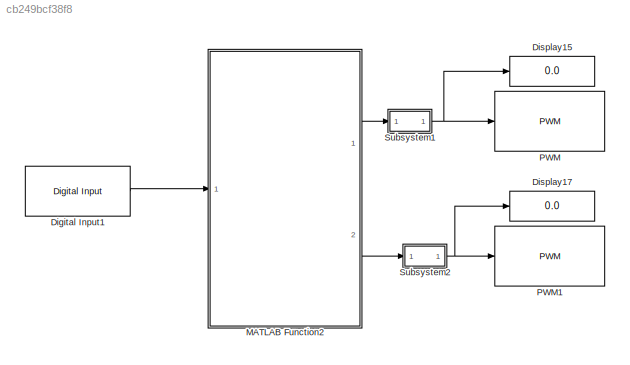
MODEL slx_cb249bcf38f8
KIND model
CONFIG AbsTol = auto
CONFIG EnableMultiTasking = on
CONFIG FixedStep = auto
CONFIG MaxStep = auto
CONFIG MinStep = auto
CONFIG RelTol = 1e-3
CONFIG SampleTimeConstraint = Unconstrained
CONFIG Solver = FixedStepAuto
CONFIG SolverName = FixedStepAuto
CONFIG StartTime = 0.0
CONFIG StopTime = inf
BLOCK [Reference] Digital Input1  REF=arduinolib/Digital Input
  Ports = [0, 1]
  SourceBlock = arduinolib/Digital Input
  SourceProductBaseCode = ARDUINO
  SourceProductName = Simulink Support Package for Arduino Hardware
  SourceType = Arduino Digital Input
BLOCK [Display] Display15
  Decimation = 1
  Ports = [1]
BLOCK [Display] Display17
  Decimation = 1
  Ports = [1]
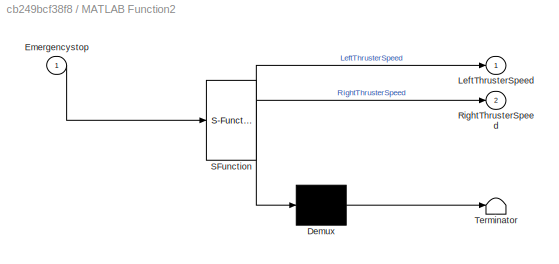
BLOCK [SubSystem] MATLAB Function2
  ErrorFcn = Stateflow.Translate.translate
  PermitHierarchicalResolution = ExplicitOnly
  Ports = [1, 2]
  RequestExecContextInheritance = off
  SFBlockType = MATLAB Function
  TreatAsAtomicUnit = on
BLOCK [Demux] MATLAB Function2/ Demux 
  Outputs = 1
  Ports = [1, 1]
BLOCK [S-Function] MATLAB Function2/ SFunction 
  EnableBusSupport = on
  FunctionName = sf_sfun
  PortCounts = [1 3]
  Ports = [1, 3]
  SFcnIsStateOwnerBlock = off
  SFunctionDeploymentMode = off
  Tag = Stateflow S-Function Test_av_hastighet_og_manovrerbarhet 2
BLOCK [Terminator] MATLAB Function2/ Terminator 
BLOCK [Inport] MATLAB Function2/Emergencystop
  IconDisplay = Port number
BLOCK [Outport] MATLAB Function2/LeftThrusterSpeed
  IconDisplay = Port number
BLOCK [Outport] MATLAB Function2/RightThrusterSpeed
  IconDisplay = Port number
  Port = 2
BLOCK [Reference] PWM  REF=arduinolib/PWM
  Ports = [1]
  SourceBlock = arduinolib/PWM
  SourceProductBaseCode = ARDUINO
  SourceProductName = Simulink Support Package for Arduino Hardware
  SourceType = Arduino PWM
BLOCK [Reference] PWM1  REF=arduinolib/PWM
  Ports = [1]
  SourceBlock = arduinolib/PWM
  SourceProductBaseCode = ARDUINO
  SourceProductName = Simulink Support Package for Arduino Hardware
  SourceType = Arduino PWM
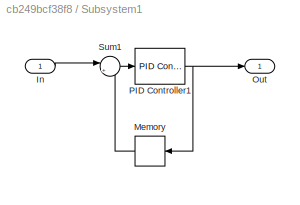
BLOCK [SubSystem] Subsystem1
  Ports = [1, 1]
  RequestExecContextInheritance = off
BLOCK [Inport] Subsystem1/In
  IconDisplay = Port number
BLOCK [Memory] Subsystem1/Memory
  InheritSampleTime = on
BLOCK [Outport] Subsystem1/Out
  IconDisplay = Port number
BLOCK [Reference] Subsystem1/PID Controller1  REF=simulink/Continuous/PID Controller
  Ports = [1, 1]
  SourceBlock = simulink/Continuous/PID Controller
  SourceProductBaseCode = SL
  SourceProductName = Simulink
  SourceType = PID 1dof
BLOCK [Sum] Subsystem1/Sum1
  IconShape = round
  InputSameDT = off
  Inputs = |+-
  OutDataTypeStr = Inherit: Inherit via internal rule
  Ports = [2, 1]
  SaturateOnIntegerOverflow = off
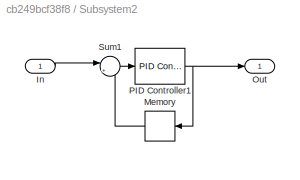
BLOCK [SubSystem] Subsystem2
  Ports = [1, 1]
  RequestExecContextInheritance = off
BLOCK [Inport] Subsystem2/In
  IconDisplay = Port number
BLOCK [Memory] Subsystem2/Memory
  InheritSampleTime = on
BLOCK [Outport] Subsystem2/Out
  IconDisplay = Port number
BLOCK [Reference] Subsystem2/PID Controller1  REF=simulink/Continuous/PID Controller
  Ports = [1, 1]
  SourceBlock = simulink/Continuous/PID Controller
  SourceProductBaseCode = SL
  SourceProductName = Simulink
  SourceType = PID 1dof
BLOCK [Sum] Subsystem2/Sum1
  IconShape = round
  InputSameDT = off
  Inputs = |+-
  OutDataTypeStr = Inherit: Inherit via internal rule
  Ports = [2, 1]
  SaturateOnIntegerOverflow = off
LINE Digital Input1:1 -> MATLAB Function2:1
LINE MATLAB Function2:1 -> Subsystem1:1
LINE MATLAB Function2:2 -> Subsystem2:1
LINE Subsystem1/In:1 -> Subsystem1/Sum1:1
LINE Subsystem1/Memory:1 -> Subsystem1/Sum1:2
NET Subsystem1/PID Controller1:1 -> Subsystem1/Memory:1, Subsystem1/Out:1
LINE Subsystem1/Sum1:1 -> Subsystem1/PID Controller1:1
NET Subsystem1:1 -> Display15:1, PWM:1
LINE Subsystem2/In:1 -> Subsystem2/Sum1:1
LINE Subsystem2/Memory:1 -> Subsystem2/Sum1:2
NET Subsystem2/PID Controller1:1 -> Subsystem2/Memory:1, Subsystem2/Out:1
LINE Subsystem2/Sum1:1 -> Subsystem2/PID Controller1:1
NET Subsystem2:1 -> Display17:1, PWM1:1
note: NET lines group one-source signal fan-out (src -> all destinations, sorted); 1:1 wires keep LINE
CHART MATLAB Function2 states=1 transitions=1
  STATE_LABEL 'eML_blk_kernel()'
  STATE_LABEL 'SCRIPT:\nfunction [LeftThrusterSpeed, RightThrusterSpeed] = Test(Emergencystop)\n\n%% Parameters\nLeftThrusterSpeed = 0;\nRightThrusterSpeed = 0;\nTurntime = 200;\nSpeedtime = 200;\nInitializationTime = 40;\npersistent StartupDelay;\nif isempty(StartupDelay)\n    StartupDelay = 0;\nend\n\npersistent SpeedDelay;\nif isempty(SpeedDelay)\n   SpeedDelay = 0;\nend\n\npersistent TurnDelay;\nif isempty(TurnDelay)\n    TurnDe...<+1015ch>'
